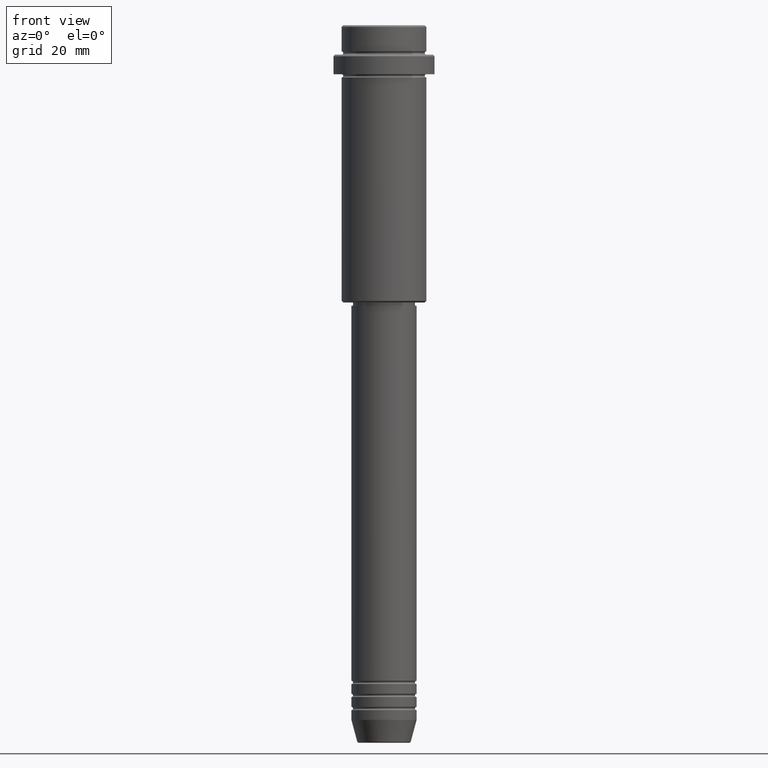
[diagram: clean part render]
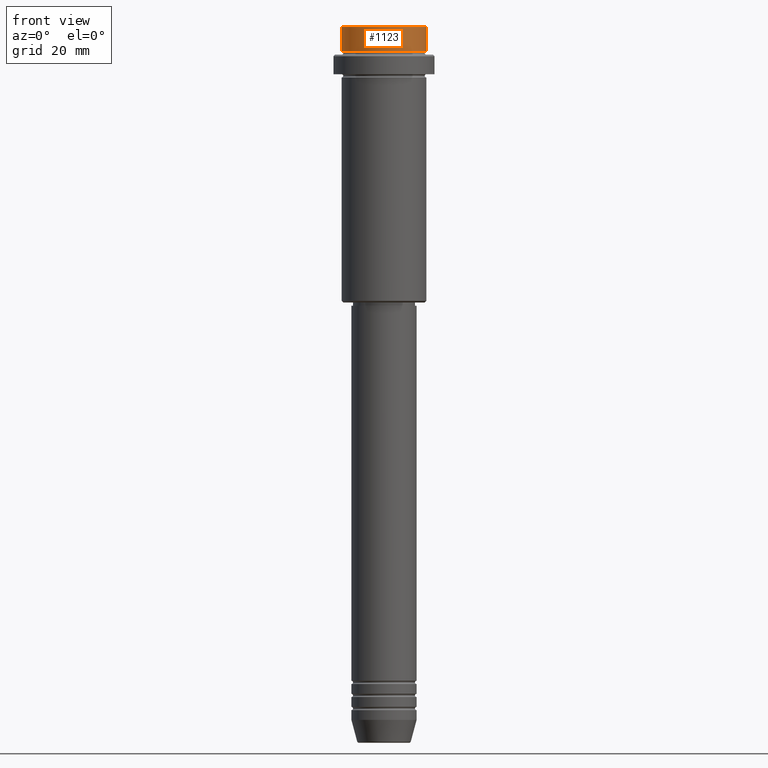
[diagram: same view with one face highlighted and labeled with its STEP entity id]
A machine part, front view. The second image highlights one B-rep face of the part: STEP entity #1123.
In plain terms, the highlighted cylindrical surface (partial cylindrical patch) has radius 13 mm, axis along (-0, -0, 1).
Its self-contained STEP definition (entity closure, byte-faithful):
#62 = LINE ( 'NONE', #622, #370 ) ;
#63 = VERTEX_POINT ( 'NONE', #1295 ) ;
#66 = VECTOR ( 'NONE', #562, 1000.000000000000000 ) ;
#121 = CARTESIAN_POINT ( 'NONE',  ( -12.99999999999999822, 1.592040838891558898E-15, 0.000000000000000000 ) ) ;
#182 = AXIS2_PLACEMENT_3D ( 'NONE', #262, #500, #1139 ) ;
#192 = ORIENTED_EDGE ( 'NONE', *, *, #716, .T. ) ;
#242 = LINE ( 'NONE', #121, #66 ) ;
#262 = CARTESIAN_POINT ( 'NONE',  ( 0.000000000000000000, 0.000000000000000000, -7.999999999999998224 ) ) ;
#266 = DIRECTION ( 'NONE',  ( 1.000000000000000000, 0.000000000000000000, 0.000000000000000000 ) ) ;
#273 = CIRCLE ( 'NONE', #182, 12.99999999999999822 ) ;
#288 = CARTESIAN_POINT ( 'NONE',  ( 0.000000000000000000, 0.000000000000000000, 0.000000000000000000 ) ) ;
#339 = EDGE_CURVE ( 'NONE', #813, #63, #273, .T. ) ;
#370 = VECTOR ( 'NONE', #1382, 1000.000000000000000 ) ;
#403 = ORIENTED_EDGE ( 'NONE', *, *, #577, .T. ) ;
#435 = ORIENTED_EDGE ( 'NONE', *, *, #339, .T. ) ;
#466 = CARTESIAN_POINT ( 'NONE',  ( 0.000000000000000000, 0.000000000000000000, -0.4999999999999483746 ) ) ;
#500 = DIRECTION ( 'NONE',  ( -0.000000000000000000, -0.000000000000000000, 1.000000000000000000 ) ) ;
#537 = VERTEX_POINT ( 'NONE', #1169 ) ;
#562 = DIRECTION ( 'NONE',  ( -0.000000000000000000, -0.000000000000000000, 1.000000000000000000 ) ) ;
#577 = EDGE_CURVE ( 'NONE', #692, #537, #1282, .T. ) ;
#621 = CYLINDRICAL_SURFACE ( 'NONE', #1075, 12.99999999999999822 ) ;
#622 = CARTESIAN_POINT ( 'NONE',  ( 12.99999999999999822, 0.000000000000000000, 0.000000000000000000 ) ) ;
#669 = EDGE_CURVE ( 'NONE', #813, #537, #242, .T. ) ;
#692 = VERTEX_POINT ( 'NONE', #989 ) ;
#698 = FACE_OUTER_BOUND ( 'NONE', #1341, .T. ) ;
#716 = EDGE_CURVE ( 'NONE', #63, #692, #62, .T. ) ;
#813 = VERTEX_POINT ( 'NONE', #1064 ) ;
#838 = DIRECTION ( 'NONE',  ( -0.000000000000000000, -0.000000000000000000, 1.000000000000000000 ) ) ;
#885 = AXIS2_PLACEMENT_3D ( 'NONE', #466, #1201, #266 ) ;
#989 = CARTESIAN_POINT ( 'NONE',  ( 12.99999999999999822, 0.000000000000000000, -0.4999999999999483746 ) ) ;
#1064 = CARTESIAN_POINT ( 'NONE',  ( -12.99999999999999822, 1.592040838891558898E-15, -7.999999999999998224 ) ) ;
#1075 = AXIS2_PLACEMENT_3D ( 'NONE', #288, #838, #1252 ) ;
#1123 = ADVANCED_FACE ( 'NONE', ( #698 ), #621, .T. ) ;
#1129 = ORIENTED_EDGE ( 'NONE', *, *, #669, .F. ) ;
#1139 = DIRECTION ( 'NONE',  ( 1.000000000000000000, 0.000000000000000000, 0.000000000000000000 ) ) ;
#1169 = CARTESIAN_POINT ( 'NONE',  ( -12.99999999999999822, 1.592040838891558898E-15, -0.4999999999999483746 ) ) ;
#1201 = DIRECTION ( 'NONE',  ( 0.000000000000000000, 0.000000000000000000, -1.000000000000000000 ) ) ;
#1252 = DIRECTION ( 'NONE',  ( 1.000000000000000000, 0.000000000000000000, 0.000000000000000000 ) ) ;
#1282 = CIRCLE ( 'NONE', #885, 12.99999999999999822 ) ;
#1295 = CARTESIAN_POINT ( 'NONE',  ( 12.99999999999999822, 0.000000000000000000, -7.999999999999998224 ) ) ;
#1341 = EDGE_LOOP ( 'NONE', ( #1129, #435, #192, #403 ) ) ;
#1382 = DIRECTION ( 'NONE',  ( -0.000000000000000000, -0.000000000000000000, 1.000000000000000000 ) ) ;